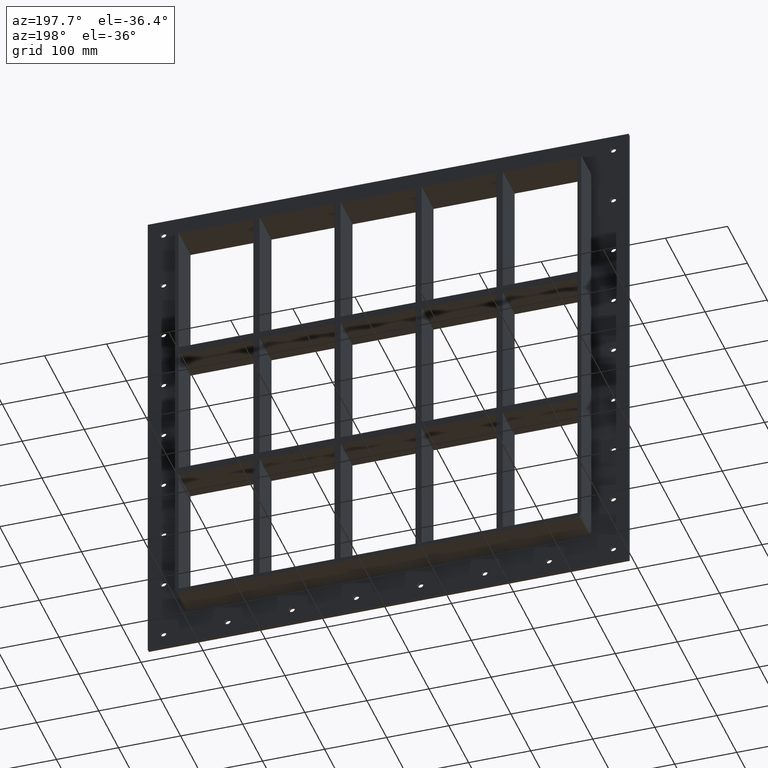
[diagram: clean part render]
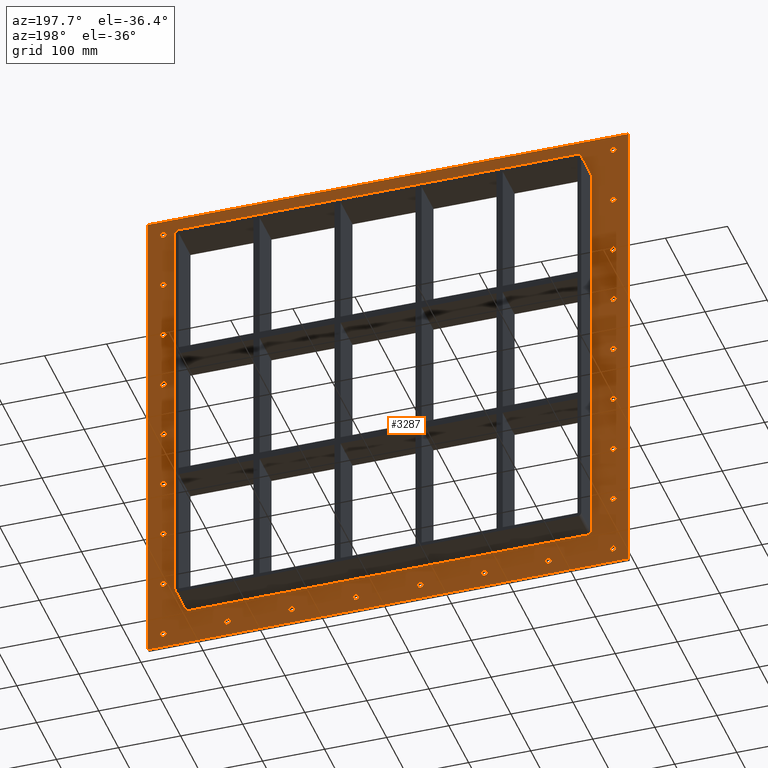
[diagram: same view with one face highlighted and labeled with its STEP entity id]
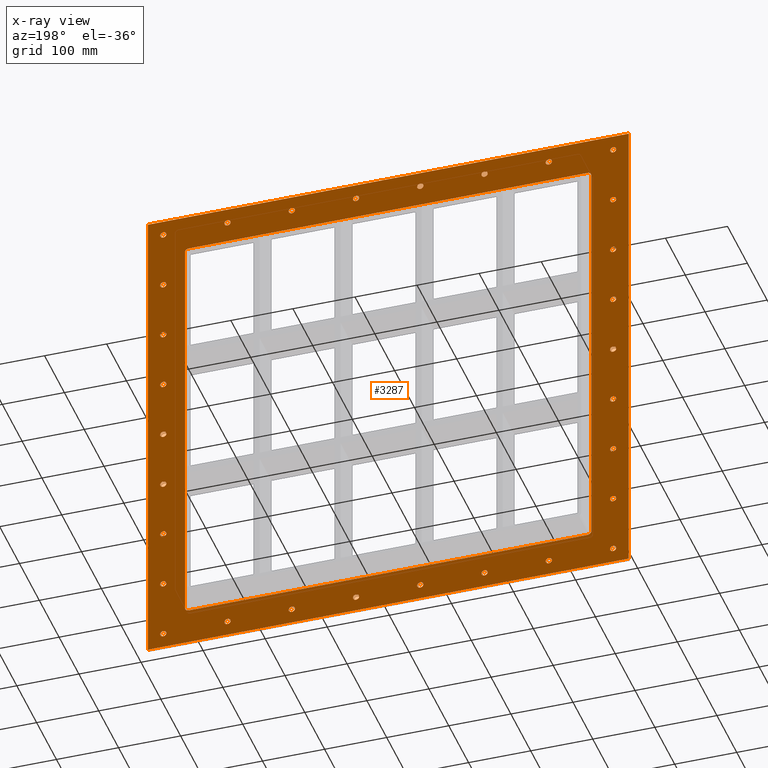
[diagram: x-ray of the same camera — body ghosted, the highlighted face saturated]
A machine part, auxiliary view. The second image highlights one B-rep face of the part: STEP entity #3287.
The next image is the same camera in x-ray: the body ghosted, the highlighted face saturated — about 0% of this face is hidden behind the body in this view.
In plain terms, the highlighted planar face has unit normal (0, 1, 0).
Its self-contained STEP definition (entity closure, byte-faithful):
#73=CARTESIAN_POINT('',(-367.24999999999994,5.999999999999943,-380.00000000000011));
#74=VERTEX_POINT('',#73);
#75=CARTESIAN_POINT('',(-362.24999999999994,5.999999999999943,-380.00000000000011));
#76=DIRECTION('',(0.0,-1.0,0.0));
#77=DIRECTION('',(1.0,0.0,0.0));
#78=AXIS2_PLACEMENT_3D('',#75,#76,#77);
#79=CIRCLE('',#78,5.0);
#80=EDGE_CURVE('',#74,#74,#79,.T.);
#101=CARTESIAN_POINT('',(357.25000000000023,5.999999999999943,-285.00000000000011));
#102=VERTEX_POINT('',#101);
#103=CARTESIAN_POINT('',(362.25000000000023,5.999999999999943,-285.00000000000011));
#104=DIRECTION('',(0.0,-1.0,0.0));
#105=DIRECTION('',(1.0,0.0,0.0));
#106=AXIS2_PLACEMENT_3D('',#103,#104,#105);
#107=CIRCLE('',#106,5.0);
#108=EDGE_CURVE('',#102,#102,#107,.T.);
#129=CARTESIAN_POINT('',(-367.24999999999994,5.999999999999943,-285.00000000000011));
#130=VERTEX_POINT('',#129);
#131=CARTESIAN_POINT('',(-362.24999999999994,5.999999999999943,-285.00000000000011));
#132=DIRECTION('',(0.0,-1.0,0.0));
#133=DIRECTION('',(1.0,0.0,0.0));
#134=AXIS2_PLACEMENT_3D('',#131,#132,#133);
#135=CIRCLE('',#134,5.0);
#136=EDGE_CURVE('',#130,#130,#135,.T.);
#157=CARTESIAN_POINT('',(357.25000000000023,5.999999999999943,-190.00000000000014));
#158=VERTEX_POINT('',#157);
#159=CARTESIAN_POINT('',(362.25000000000023,5.999999999999943,-190.00000000000014));
#160=DIRECTION('',(0.0,-1.0,0.0));
#161=DIRECTION('',(1.0,0.0,0.0));
#162=AXIS2_PLACEMENT_3D('',#159,#160,#161);
#163=CIRCLE('',#162,5.0);
#164=EDGE_CURVE('',#158,#158,#163,.T.);
#185=CARTESIAN_POINT('',(-367.24999999999994,5.999999999999943,-190.00000000000014));
#186=VERTEX_POINT('',#185);
#187=CARTESIAN_POINT('',(-362.24999999999994,5.999999999999943,-190.00000000000014));
#188=DIRECTION('',(0.0,-1.0,0.0));
#189=DIRECTION('',(1.0,0.0,0.0));
#190=AXIS2_PLACEMENT_3D('',#187,#188,#189);
#191=CIRCLE('',#190,5.0);
#192=EDGE_CURVE('',#186,#186,#191,.T.);
#213=CARTESIAN_POINT('',(357.25000000000023,5.999999999999943,-95.000000000000142));
#214=VERTEX_POINT('',#213);
#215=CARTESIAN_POINT('',(362.25000000000023,5.999999999999943,-95.000000000000142));
#216=DIRECTION('',(0.0,-1.0,0.0));
#217=DIRECTION('',(1.0,0.0,0.0));
#218=AXIS2_PLACEMENT_3D('',#215,#216,#217);
#219=CIRCLE('',#218,5.0);
#220=EDGE_CURVE('',#214,#214,#219,.T.);
#241=CARTESIAN_POINT('',(-367.24999999999994,5.999999999999943,-95.000000000000142));
#242=VERTEX_POINT('',#241);
#243=CARTESIAN_POINT('',(-362.24999999999994,5.999999999999943,-95.000000000000142));
#244=DIRECTION('',(0.0,-1.0,0.0));
#245=DIRECTION('',(1.0,0.0,0.0));
#246=AXIS2_PLACEMENT_3D('',#243,#244,#245);
#247=CIRCLE('',#246,5.0);
#248=EDGE_CURVE('',#242,#242,#247,.T.);
#269=CARTESIAN_POINT('',(357.25000000000023,5.999999999999943,-1.421085E-013));
#270=VERTEX_POINT('',#269);
#271=CARTESIAN_POINT('',(362.25000000000023,5.999999999999943,-1.421085E-013));
#272=DIRECTION('',(0.0,-1.0,0.0));
#273=DIRECTION('',(1.0,0.0,0.0));
#274=AXIS2_PLACEMENT_3D('',#271,#272,#273);
#275=CIRCLE('',#274,5.0);
#276=EDGE_CURVE('',#270,#270,#275,.T.);
#297=CARTESIAN_POINT('',(-367.24999999999994,5.999999999999943,-1.421085E-013));
#298=VERTEX_POINT('',#297);
#299=CARTESIAN_POINT('',(-362.24999999999994,5.999999999999943,-1.421085E-013));
#300=DIRECTION('',(0.0,-1.0,0.0));
#301=DIRECTION('',(1.0,0.0,0.0));
#302=AXIS2_PLACEMENT_3D('',#299,#300,#301);
#303=CIRCLE('',#302,5.0);
#304=EDGE_CURVE('',#298,#298,#303,.T.);
#325=CARTESIAN_POINT('',(357.25000000000023,5.999999999999943,94.999999999999858));
#326=VERTEX_POINT('',#325);
#327=CARTESIAN_POINT('',(362.25000000000023,5.999999999999943,94.999999999999858));
#328=DIRECTION('',(0.0,-1.0,0.0));
#329=DIRECTION('',(1.0,0.0,0.0));
#330=AXIS2_PLACEMENT_3D('',#327,#328,#329);
#331=CIRCLE('',#330,5.0);
#332=EDGE_CURVE('',#326,#326,#331,.T.);
#353=CARTESIAN_POINT('',(-367.24999999999994,5.999999999999943,94.999999999999858));
#354=VERTEX_POINT('',#353);
#355=CARTESIAN_POINT('',(-362.24999999999994,5.999999999999943,94.999999999999858));
#356=DIRECTION('',(0.0,-1.0,0.0));
#357=DIRECTION('',(1.0,0.0,0.0));
#358=AXIS2_PLACEMENT_3D('',#355,#356,#357);
#359=CIRCLE('',#358,5.0);
#360=EDGE_CURVE('',#354,#354,#359,.T.);
#381=CARTESIAN_POINT('',(357.25000000000023,5.999999999999943,189.99999999999986));
#382=VERTEX_POINT('',#381);
#383=CARTESIAN_POINT('',(362.25000000000023,5.999999999999943,189.99999999999986));
#384=DIRECTION('',(0.0,-1.0,0.0));
#385=DIRECTION('',(1.0,0.0,0.0));
#386=AXIS2_PLACEMENT_3D('',#383,#384,#385);
#387=CIRCLE('',#386,5.0);
#388=EDGE_CURVE('',#382,#382,#387,.T.);
#409=CARTESIAN_POINT('',(-367.24999999999994,5.999999999999943,189.99999999999986));
#410=VERTEX_POINT('',#409);
#411=CARTESIAN_POINT('',(-362.24999999999994,5.999999999999943,189.99999999999986));
#412=DIRECTION('',(0.0,-1.0,0.0));
#413=DIRECTION('',(1.0,0.0,0.0));
#414=AXIS2_PLACEMENT_3D('',#411,#412,#413);
#415=CIRCLE('',#414,5.0);
#416=EDGE_CURVE('',#410,#410,#415,.T.);
#437=CARTESIAN_POINT('',(357.25000000000023,5.999999999999943,284.99999999999989));
#438=VERTEX_POINT('',#437);
#439=CARTESIAN_POINT('',(362.25000000000023,5.999999999999943,284.99999999999989));
#440=DIRECTION('',(0.0,-1.0,0.0));
#441=DIRECTION('',(1.0,0.0,0.0));
#442=AXIS2_PLACEMENT_3D('',#439,#440,#441);
#443=CIRCLE('',#442,5.0);
#444=EDGE_CURVE('',#438,#438,#443,.T.);
#465=CARTESIAN_POINT('',(-367.24999999999994,5.999999999999943,284.99999999999989));
#466=VERTEX_POINT('',#465);
#467=CARTESIAN_POINT('',(-362.24999999999994,5.999999999999943,284.99999999999989));
#468=DIRECTION('',(0.0,-1.0,0.0));
#469=DIRECTION('',(1.0,0.0,0.0));
#470=AXIS2_PLACEMENT_3D('',#467,#468,#469);
#471=CIRCLE('',#470,5.0);
#472=EDGE_CURVE('',#466,#466,#471,.T.);
#493=CARTESIAN_POINT('',(-263.74999999999989,5.999999999999943,379.99999999999989));
#494=VERTEX_POINT('',#493);
#495=CARTESIAN_POINT('',(-258.74999999999989,5.999999999999943,379.99999999999989));
#496=DIRECTION('',(0.0,-1.0,0.0));
#497=DIRECTION('',(1.0,0.0,0.0));
#498=AXIS2_PLACEMENT_3D('',#495,#496,#497);
#499=CIRCLE('',#498,5.0);
#500=EDGE_CURVE('',#494,#494,#499,.T.);
#521=CARTESIAN_POINT('',(-263.74999999999989,5.999999999999943,-380.00000000000011));
#522=VERTEX_POINT('',#521);
#523=CARTESIAN_POINT('',(-258.74999999999989,5.999999999999943,-380.00000000000011));
#524=DIRECTION('',(0.0,-1.0,0.0));
#525=DIRECTION('',(1.0,0.0,0.0));
#526=AXIS2_PLACEMENT_3D('',#523,#524,#525);
#527=CIRCLE('',#526,5.0);
#528=EDGE_CURVE('',#522,#522,#527,.T.);
#549=CARTESIAN_POINT('',(-160.24999999999983,5.999999999999943,379.99999999999989));
#550=VERTEX_POINT('',#549);
#551=CARTESIAN_POINT('',(-155.24999999999983,5.999999999999943,379.99999999999989));
#552=DIRECTION('',(0.0,-1.0,0.0));
#553=DIRECTION('',(1.0,0.0,0.0));
#554=AXIS2_PLACEMENT_3D('',#551,#552,#553);
#555=CIRCLE('',#554,5.0);
#556=EDGE_CURVE('',#550,#550,#555,.T.);
#577=CARTESIAN_POINT('',(-160.24999999999983,5.999999999999943,-380.00000000000011));
#578=VERTEX_POINT('',#577);
#579=CARTESIAN_POINT('',(-155.24999999999983,5.999999999999943,-380.00000000000011));
#580=DIRECTION('',(0.0,-1.0,0.0));
#581=DIRECTION('',(1.0,0.0,0.0));
#582=AXIS2_PLACEMENT_3D('',#579,#580,#581);
#583=CIRCLE('',#582,5.0);
#584=EDGE_CURVE('',#578,#578,#583,.T.);
#605=CARTESIAN_POINT('',(-56.749999999999829,5.999999999999943,379.99999999999989));
#606=VERTEX_POINT('',#605);
#607=CARTESIAN_POINT('',(-51.749999999999829,5.999999999999943,379.99999999999989));
#608=DIRECTION('',(0.0,-1.0,0.0));
#609=DIRECTION('',(1.0,0.0,0.0));
#610=AXIS2_PLACEMENT_3D('',#607,#608,#609);
#611=CIRCLE('',#610,5.0);
#612=EDGE_CURVE('',#606,#606,#611,.T.);
#633=CARTESIAN_POINT('',(-56.749999999999829,5.999999999999943,-380.00000000000011));
#634=VERTEX_POINT('',#633);
#635=CARTESIAN_POINT('',(-51.749999999999829,5.999999999999943,-380.00000000000011));
#636=DIRECTION('',(0.0,-1.0,0.0));
#637=DIRECTION('',(1.0,0.0,0.0));
#638=AXIS2_PLACEMENT_3D('',#635,#636,#637);
#639=CIRCLE('',#638,5.0);
#640=EDGE_CURVE('',#634,#634,#639,.T.);
#661=CARTESIAN_POINT('',(46.750000000000185,5.999999999999943,379.99999999999989));
#662=VERTEX_POINT('',#661);
#663=CARTESIAN_POINT('',(51.750000000000185,5.999999999999943,379.99999999999989));
#664=DIRECTION('',(0.0,-1.0,0.0));
#665=DIRECTION('',(1.0,0.0,0.0));
#666=AXIS2_PLACEMENT_3D('',#663,#664,#665);
#667=CIRCLE('',#666,5.0);
#668=EDGE_CURVE('',#662,#662,#667,.T.);
#689=CARTESIAN_POINT('',(46.750000000000185,5.999999999999943,-380.00000000000011));
#690=VERTEX_POINT('',#689);
#691=CARTESIAN_POINT('',(51.750000000000185,5.999999999999943,-380.00000000000011));
#692=DIRECTION('',(0.0,-1.0,0.0));
#693=DIRECTION('',(1.0,0.0,0.0));
#694=AXIS2_PLACEMENT_3D('',#691,#692,#693);
#695=CIRCLE('',#694,5.0);
#696=EDGE_CURVE('',#690,#690,#695,.T.);
#717=CARTESIAN_POINT('',(150.2500000000002,5.999999999999943,379.99999999999989));
#718=VERTEX_POINT('',#717);
#719=CARTESIAN_POINT('',(155.2500000000002,5.999999999999943,379.99999999999989));
#720=DIRECTION('',(0.0,-1.0,0.0));
#721=DIRECTION('',(1.0,0.0,0.0));
#722=AXIS2_PLACEMENT_3D('',#719,#720,#721);
#723=CIRCLE('',#722,5.0);
#724=EDGE_CURVE('',#718,#718,#723,.T.);
#745=CARTESIAN_POINT('',(150.2500000000002,5.999999999999943,-380.00000000000011));
#746=VERTEX_POINT('',#745);
#747=CARTESIAN_POINT('',(155.2500000000002,5.999999999999943,-380.00000000000011));
#748=DIRECTION('',(0.0,-1.0,0.0));
#749=DIRECTION('',(1.0,0.0,0.0));
#750=AXIS2_PLACEMENT_3D('',#747,#748,#749);
#751=CIRCLE('',#750,5.0);
#752=EDGE_CURVE('',#746,#746,#751,.T.);
#773=CARTESIAN_POINT('',(253.75000000000023,5.999999999999943,379.99999999999989));
#774=VERTEX_POINT('',#773);
#775=CARTESIAN_POINT('',(258.75000000000023,5.999999999999943,379.99999999999989));
#776=DIRECTION('',(0.0,-1.0,0.0));
#777=DIRECTION('',(1.0,0.0,0.0));
#778=AXIS2_PLACEMENT_3D('',#775,#776,#777);
#779=CIRCLE('',#778,5.0);
#780=EDGE_CURVE('',#774,#774,#779,.T.);
#801=CARTESIAN_POINT('',(253.75000000000023,5.999999999999943,-380.00000000000011));
#802=VERTEX_POINT('',#801);
#803=CARTESIAN_POINT('',(258.75000000000023,5.999999999999943,-380.00000000000011));
#804=DIRECTION('',(0.0,-1.0,0.0));
#805=DIRECTION('',(1.0,0.0,0.0));
#806=AXIS2_PLACEMENT_3D('',#803,#804,#805);
#807=CIRCLE('',#806,5.0);
#808=EDGE_CURVE('',#802,#802,#807,.T.);
#829=CARTESIAN_POINT('',(357.25000000000023,5.999999999999943,-380.00000000000011));
#830=VERTEX_POINT('',#829);
#831=CARTESIAN_POINT('',(362.25000000000023,5.999999999999943,-380.00000000000011));
#832=DIRECTION('',(0.0,-1.0,0.0));
#833=DIRECTION('',(1.0,0.0,0.0));
#834=AXIS2_PLACEMENT_3D('',#831,#832,#833);
#835=CIRCLE('',#834,5.0);
#836=EDGE_CURVE('',#830,#830,#835,.T.);
#857=CARTESIAN_POINT('',(-367.24999999999994,5.999999999999943,379.99999999999989));
#858=VERTEX_POINT('',#857);
#859=CARTESIAN_POINT('',(-362.24999999999994,5.999999999999943,379.99999999999989));
#860=DIRECTION('',(0.0,-1.0,0.0));
#861=DIRECTION('',(1.0,0.0,0.0));
#862=AXIS2_PLACEMENT_3D('',#859,#860,#861);
#863=CIRCLE('',#862,5.0);
#864=EDGE_CURVE('',#858,#858,#863,.T.);
#885=CARTESIAN_POINT('',(357.25000000000023,5.999999999999943,379.99999999999989));
#886=VERTEX_POINT('',#885);
#887=CARTESIAN_POINT('',(362.25000000000023,5.999999999999943,379.99999999999989));
#888=DIRECTION('',(0.0,-1.0,0.0));
#889=DIRECTION('',(1.0,0.0,0.0));
#890=AXIS2_PLACEMENT_3D('',#887,#888,#889);
#891=CIRCLE('',#890,5.0);
#892=EDGE_CURVE('',#886,#886,#891,.T.);
#3088=CARTESIAN_POINT('',(4.304961E-014,6.000000000000001,0.0));
#3089=DIRECTION('',(0.0,1.0,0.0));
#3090=DIRECTION('',(0.0,0.0,1.0));
#3091=AXIS2_PLACEMENT_3D('',#3088,#3089,#3090);
#3092=PLANE('',#3091);
#3093=CARTESIAN_POINT('',(-387.24999999999994,6.000000000000001,405.00000000000006));
#3094=VERTEX_POINT('',#3093);
#3095=CARTESIAN_POINT('',(387.24999999999994,6.000000000000001,405.00000000000006));
#3096=VERTEX_POINT('',#3095);
#3097=CARTESIAN_POINT('',(-387.24999999999994,6.000000000000001,405.00000000000006));
#3098=DIRECTION('',(1.0,0.0,0.0));
#3099=VECTOR('',#3098,774.49999999999989);
#3100=LINE('',#3097,#3099);
#3101=EDGE_CURVE('',#3094,#3096,#3100,.T.);
#3102=ORIENTED_EDGE('',*,*,#3101,.T.);
#3103=CARTESIAN_POINT('',(387.24999999999994,6.000000000000001,-405.00000000000006));
#3104=VERTEX_POINT('',#3103);
#3105=CARTESIAN_POINT('',(387.25,6.000000000000001,405.00000000000006));
#3106=DIRECTION('',(0.0,0.0,-1.0));
#3107=VECTOR('',#3106,810.00000000000011);
#3108=LINE('',#3105,#3107);
#3109=EDGE_CURVE('',#3096,#3104,#3108,.T.);
#3110=ORIENTED_EDGE('',*,*,#3109,.T.);
#3111=CARTESIAN_POINT('',(-387.24999999999994,6.000000000000001,-405.00000000000006));
#3112=VERTEX_POINT('',#3111);
#3113=CARTESIAN_POINT('',(387.25,6.000000000000001,-405.00000000000006));
#3114=DIRECTION('',(-1.0,0.0,0.0));
#3115=VECTOR('',#3114,774.49999999999989);
#3116=LINE('',#3113,#3115);
#3117=EDGE_CURVE('',#3104,#3112,#3116,.T.);
#3118=ORIENTED_EDGE('',*,*,#3117,.T.);
#3119=CARTESIAN_POINT('',(-387.24999999999994,6.000000000000001,-405.00000000000006));
#3120=DIRECTION('',(0.0,0.0,1.0));
#3121=VECTOR('',#3120,810.00000000000011);
#3122=LINE('',#3119,#3121);
#3123=EDGE_CURVE('',#3112,#3094,#3122,.T.);
#3124=ORIENTED_EDGE('',*,*,#3123,.T.);
#3125=EDGE_LOOP('',(#3102,#3110,#3118,#3124));
#3126=FACE_OUTER_BOUND('',#3125,.T.);
#3127=ORIENTED_EDGE('',*,*,#80,.T.);
#3128=EDGE_LOOP('',(#3127));
#3129=FACE_BOUND('',#3128,.T.);
#3130=ORIENTED_EDGE('',*,*,#108,.T.);
#3131=EDGE_LOOP('',(#3130));
#3132=FACE_BOUND('',#3131,.T.);
#3133=ORIENTED_EDGE('',*,*,#136,.T.);
#3134=EDGE_LOOP('',(#3133));
#3135=FACE_BOUND('',#3134,.T.);
#3136=ORIENTED_EDGE('',*,*,#164,.T.);
#3137=EDGE_LOOP('',(#3136));
#3138=FACE_BOUND('',#3137,.T.);
#3139=ORIENTED_EDGE('',*,*,#192,.T.);
#3140=EDGE_LOOP('',(#3139));
#3141=FACE_BOUND('',#3140,.T.);
#3142=ORIENTED_EDGE('',*,*,#220,.T.);
#3143=EDGE_LOOP('',(#3142));
#3144=FACE_BOUND('',#3143,.T.);
#3145=ORIENTED_EDGE('',*,*,#248,.T.);
#3146=EDGE_LOOP('',(#3145));
#3147=FACE_BOUND('',#3146,.T.);
#3148=ORIENTED_EDGE('',*,*,#276,.T.);
#3149=EDGE_LOOP('',(#3148));
#3150=FACE_BOUND('',#3149,.T.);
#3151=ORIENTED_EDGE('',*,*,#304,.T.);
#3152=EDGE_LOOP('',(#3151));
#3153=FACE_BOUND('',#3152,.T.);
#3154=ORIENTED_EDGE('',*,*,#332,.T.);
#3155=EDGE_LOOP('',(#3154));
#3156=FACE_BOUND('',#3155,.T.);
#3157=ORIENTED_EDGE('',*,*,#360,.T.);
#3158=EDGE_LOOP('',(#3157));
#3159=FACE_BOUND('',#3158,.T.);
#3160=ORIENTED_EDGE('',*,*,#388,.T.);
#3161=EDGE_LOOP('',(#3160));
#3162=FACE_BOUND('',#3161,.T.);
#3163=ORIENTED_EDGE('',*,*,#416,.T.);
#3164=EDGE_LOOP('',(#3163));
#3165=FACE_BOUND('',#3164,.T.);
#3166=ORIENTED_EDGE('',*,*,#444,.T.);
#3167=EDGE_LOOP('',(#3166));
#3168=FACE_BOUND('',#3167,.T.);
#3169=ORIENTED_EDGE('',*,*,#472,.T.);
#3170=EDGE_LOOP('',(#3169));
#3171=FACE_BOUND('',#3170,.T.);
#3172=ORIENTED_EDGE('',*,*,#500,.T.);
#3173=EDGE_LOOP('',(#3172));
#3174=FACE_BOUND('',#3173,.T.);
#3175=ORIENTED_EDGE('',*,*,#528,.T.);
#3176=EDGE_LOOP('',(#3175));
#3177=FACE_BOUND('',#3176,.T.);
#3178=ORIENTED_EDGE('',*,*,#556,.T.);
#3179=EDGE_LOOP('',(#3178));
#3180=FACE_BOUND('',#3179,.T.);
#3181=ORIENTED_EDGE('',*,*,#584,.T.);
#3182=EDGE_LOOP('',(#3181));
#3183=FACE_BOUND('',#3182,.T.);
#3184=ORIENTED_EDGE('',*,*,#612,.T.);
#3185=EDGE_LOOP('',(#3184));
#3186=FACE_BOUND('',#3185,.T.);
#3187=ORIENTED_EDGE('',*,*,#640,.T.);
#3188=EDGE_LOOP('',(#3187));
#3189=FACE_BOUND('',#3188,.T.);
#3190=ORIENTED_EDGE('',*,*,#668,.T.);
#3191=EDGE_LOOP('',(#3190));
#3192=FACE_BOUND('',#3191,.T.);
#3193=ORIENTED_EDGE('',*,*,#696,.T.);
#3194=EDGE_LOOP('',(#3193));
#3195=FACE_BOUND('',#3194,.T.);
#3196=ORIENTED_EDGE('',*,*,#724,.T.);
#3197=EDGE_LOOP('',(#3196));
#3198=FACE_BOUND('',#3197,.T.);
#3199=ORIENTED_EDGE('',*,*,#752,.T.);
#3200=EDGE_LOOP('',(#3199));
#3201=FACE_BOUND('',#3200,.T.);
#3202=ORIENTED_EDGE('',*,*,#780,.T.);
#3203=EDGE_LOOP('',(#3202));
#3204=FACE_BOUND('',#3203,.T.);
#3205=ORIENTED_EDGE('',*,*,#808,.T.);
#3206=EDGE_LOOP('',(#3205));
#3207=FACE_BOUND('',#3206,.T.);
#3208=ORIENTED_EDGE('',*,*,#836,.T.);
#3209=EDGE_LOOP('',(#3208));
#3210=FACE_BOUND('',#3209,.T.);
#3211=ORIENTED_EDGE('',*,*,#864,.T.);
#3212=EDGE_LOOP('',(#3211));
#3213=FACE_BOUND('',#3212,.T.);
#3214=ORIENTED_EDGE('',*,*,#892,.T.);
#3215=EDGE_LOOP('',(#3214));
#3216=FACE_BOUND('',#3215,.T.);
#3217=CARTESIAN_POINT('',(-321.25,6.000000000000001,-345.0));
#3218=VERTEX_POINT('',#3217);
#3219=CARTESIAN_POINT('',(-327.24999999999994,6.000000000000001,-339.00000000000006));
#3220=VERTEX_POINT('',#3219);
#3221=CARTESIAN_POINT('',(-321.25,6.000000000000001,-339.00000000000006));
#3222=DIRECTION('',(0.0,1.0,0.0));
#3223=DIRECTION('',(-0.707106781186548,0.0,-0.707106781186548));
#3224=AXIS2_PLACEMENT_3D('',#3221,#3222,#3223);
#3225=CIRCLE('',#3224,6.000000000000002);
#3226=EDGE_CURVE('',#3218,#3220,#3225,.T.);
#3227=ORIENTED_EDGE('',*,*,#3226,.F.);
#3228=CARTESIAN_POINT('',(321.25,6.000000000000001,-345.0));
#3229=VERTEX_POINT('',#3228);
#3230=CARTESIAN_POINT('',(321.25,6.000000000000001,-345.0));
#3231=DIRECTION('',(-1.0,0.0,0.0));
#3232=VECTOR('',#3231,642.5);
#3233=LINE('',#3230,#3232);
#3234=EDGE_CURVE('',#3229,#3218,#3233,.T.);
#3235=ORIENTED_EDGE('',*,*,#3234,.F.);
#3236=CARTESIAN_POINT('',(327.24999999999994,6.000000000000001,-338.99999999999989));
#3237=VERTEX_POINT('',#3236);
#3238=CARTESIAN_POINT('',(321.25,6.000000000000001,-338.99999999999989));
#3239=DIRECTION('',(0.0,1.0,0.0));
#3240=DIRECTION('',(0.707106781186539,0.0,-0.707106781186556));
#3241=AXIS2_PLACEMENT_3D('',#3238,#3239,#3240);
#3242=CIRCLE('',#3241,6.000000000000001);
#3243=EDGE_CURVE('',#3237,#3229,#3242,.T.);
#3244=ORIENTED_EDGE('',*,*,#3243,.F.);
#3245=CARTESIAN_POINT('',(327.24999999999994,6.000000000000001,339.00000000000011));
#3246=VERTEX_POINT('',#3245);
#3247=CARTESIAN_POINT('',(327.24999999999994,6.000000000000001,339.00000000000011));
#3248=DIRECTION('',(0.0,0.0,-1.0));
#3249=VECTOR('',#3248,678.0);
#3250=LINE('',#3247,#3249);
#3251=EDGE_CURVE('',#3246,#3237,#3250,.T.);
#3252=ORIENTED_EDGE('',*,*,#3251,.F.);
#3253=CARTESIAN_POINT('',(321.25,6.000000000000001,345.00000000000011));
#3254=VERTEX_POINT('',#3253);
#3255=CARTESIAN_POINT('',(321.25,6.000000000000001,339.00000000000011));
#3256=DIRECTION('',(0.0,1.0,0.0));
#3257=DIRECTION('',(0.707106781186539,0.0,0.707106781186556));
#3258=AXIS2_PLACEMENT_3D('',#3255,#3256,#3257);
#3259=CIRCLE('',#3258,6.000000000000001);
#3260=EDGE_CURVE('',#3254,#3246,#3259,.T.);
#3261=ORIENTED_EDGE('',*,*,#3260,.F.);
#3262=CARTESIAN_POINT('',(-321.25,6.000000000000001,345.00000000000011));
#3263=VERTEX_POINT('',#3262);
#3264=CARTESIAN_POINT('',(-321.25,6.000000000000001,345.00000000000011));
#3265=DIRECTION('',(1.0,0.0,0.0));
#3266=VECTOR('',#3265,642.5);
#3267=LINE('',#3264,#3266);
#3268=EDGE_CURVE('',#3263,#3254,#3267,.T.);
#3269=ORIENTED_EDGE('',*,*,#3268,.F.);
#3270=CARTESIAN_POINT('',(-327.24999999999994,6.000000000000001,339.00000000000006));
#3271=VERTEX_POINT('',#3270);
#3272=CARTESIAN_POINT('',(-321.25,6.000000000000001,339.00000000000006));
#3273=DIRECTION('',(0.0,1.0,0.0));
#3274=DIRECTION('',(-0.707106781186539,0.0,0.707106781186556));
#3275=AXIS2_PLACEMENT_3D('',#3272,#3273,#3274);
#3276=CIRCLE('',#3275,6.000000000000001);
#3277=EDGE_CURVE('',#3271,#3263,#3276,.T.);
#3278=ORIENTED_EDGE('',*,*,#3277,.F.);
#3279=CARTESIAN_POINT('',(-327.24999999999994,6.000000000000001,-339.00000000000006));
#3280=DIRECTION('',(0.0,0.0,1.0));
#3281=VECTOR('',#3280,678.00000000000011);
#3282=LINE('',#3279,#3281);
#3283=EDGE_CURVE('',#3220,#3271,#3282,.T.);
#3284=ORIENTED_EDGE('',*,*,#3283,.F.);
#3285=EDGE_LOOP('',(#3227,#3235,#3244,#3252,#3261,#3269,#3278,#3284));
#3286=FACE_BOUND('',#3285,.T.);
#3287=ADVANCED_FACE('',(#3126,#3129,#3132,#3135,#3138,#3141,#3144,#3147,#3150,#3153,#3156,#3159,#3162,#3165,#3168,#3171,#3174,#3177,#3180,#3183,#3186,#3189,#3192,#3195,#3198,#3201,#3204,#3207,#3210,#3213,#3216,#3286),#3092,.T.);